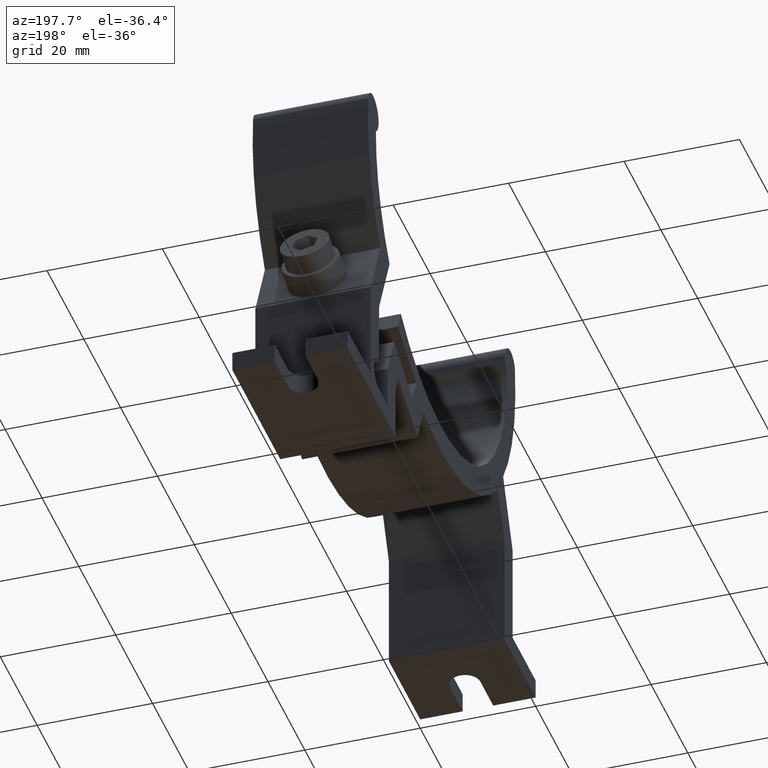
[diagram: clean part render]
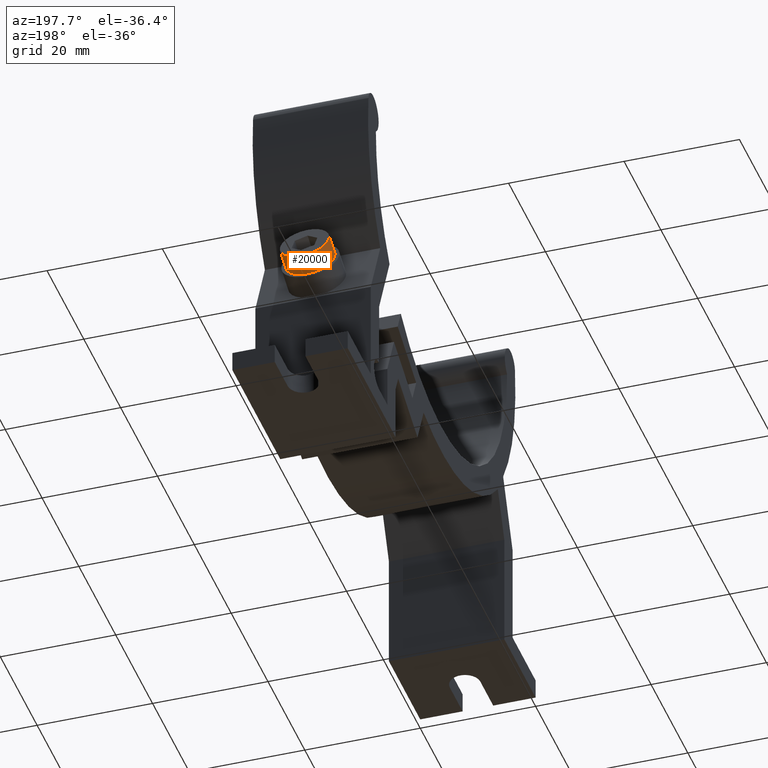
[diagram: same view with one face highlighted and labeled with its STEP entity id]
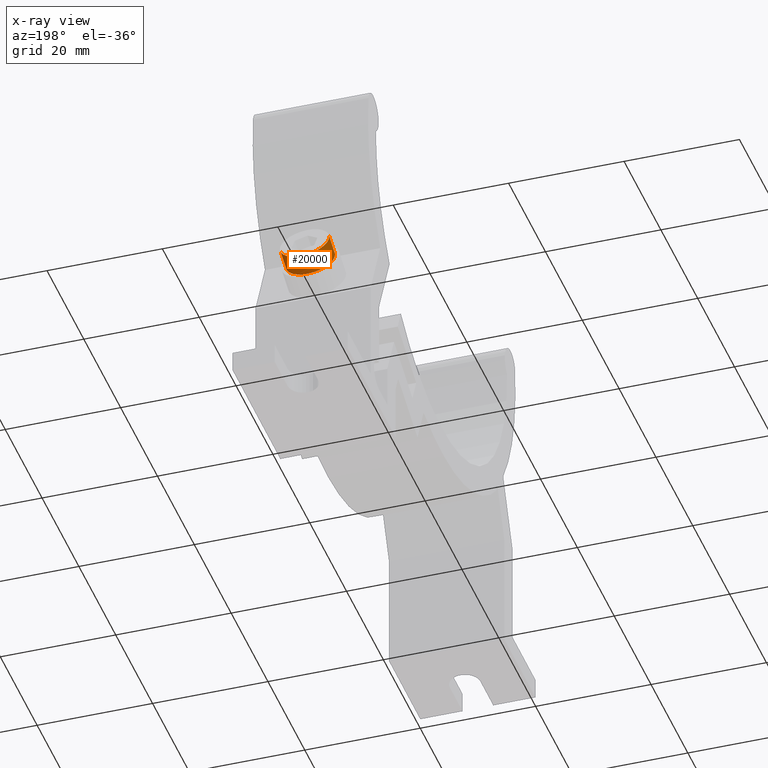
[diagram: x-ray of the same camera — body ghosted, the highlighted face saturated]
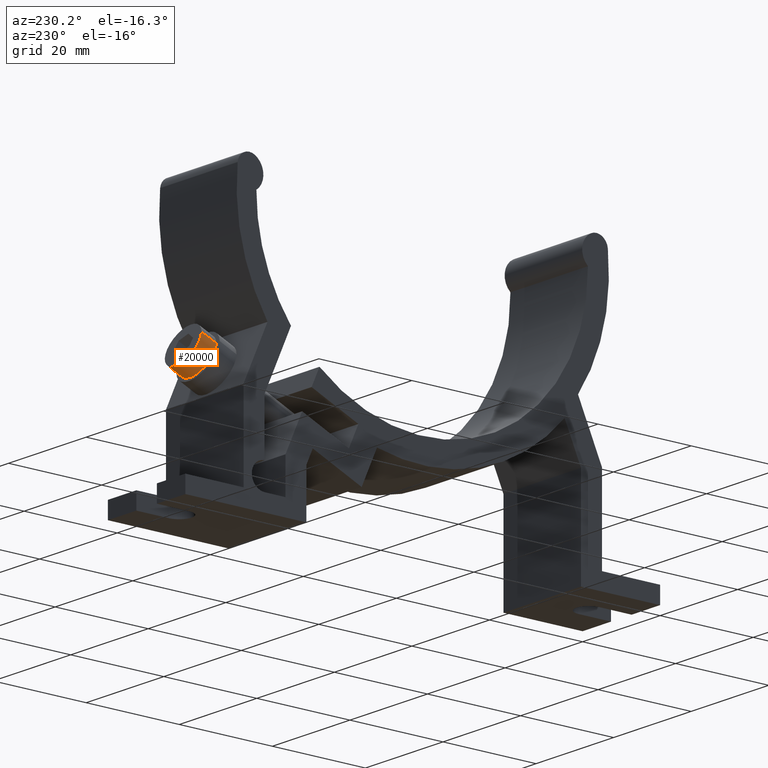
[diagram: same view with one face highlighted and labeled with its STEP entity id]
A machine part, auxiliary view. The second image highlights one B-rep face of the part: STEP entity #20000.
The next image is the same camera in x-ray: the body ghosted, the highlighted face saturated — about 0% of this face is hidden behind the body in this view.
A second angle (auxiliary view) of the same face is appended — the face is thin or edge-on in the first view.
In plain terms, the highlighted cylindrical surface (edge-blend (fillet) strip) has radius 4.25 mm, axis along (-0, -0.9135, -0.4067).
Its self-contained STEP definition (entity closure, byte-faithful):
#19410=CARTESIAN_POINT('',(39.9716115359942,-27.0835793649139,10.1));
#19420=DIRECTION('',(-0.913545457642601,-0.4067366430758,
1.94289029309402E-16));
#19430=DIRECTION('',(-0.16543469682057,0.371572412738696,
-0.913545457642602));
#19440=AXIS2_PLACEMENT_3D('',#19410,#19420,#19430);
#19450=CIRCLE('',#19440,4.25);
#19460=CARTESIAN_POINT('',(40.6747089974816,-28.6627621190534,
13.9825681949811));
#19470=VERTEX_POINT('',#19460);
#19480=CARTESIAN_POINT('',(39.2685140745068,-25.5043966107744,
6.21743180501895));
#19490=VERTEX_POINT('',#19480);
#19520=EDGE_CURVE('',#19490,#19470,#19450,.T.);
#19690=CARTESIAN_POINT('',(43.1690206377433,-25.6600011141486,10.1));
#19700=DIRECTION('',(-0.913545457642601,-0.4067366430758,
-3.33106970613062E-17));
#19710=DIRECTION('',(0.165434696820571,-0.371572412738697,
0.913545457642601));
#19720=AXIS2_PLACEMENT_3D('',#19690,#19700,#19710);
#19730=CYLINDRICAL_SURFACE('',#19720,4.25);
#19740=CARTESIAN_POINT('',(43.8721180992307,-27.2391838682881,
13.9825681949811));
#19750=DIRECTION('',(-0.913545457642601,-0.4067366430758,
-3.33106970613062E-17));
#19760=VECTOR('',#19750,1.);
#19770=LINE('',#19740,#19760);
#19780=CARTESIAN_POINT('',(43.8721180992307,-27.2391838682881,
13.9825681949811));
#19790=VERTEX_POINT('',#19780);
#19800=EDGE_CURVE('',#19790,#19470,#19770,.T.);
#19810=ORIENTED_EDGE('',*,*,#19800,.T.);
#19820=CARTESIAN_POINT('',(43.1690206377433,-25.6600011141486,10.1));
#19830=DIRECTION('',(-0.913545457642601,-0.4067366430758,
-3.33106970613062E-17));
#19840=DIRECTION('',(0.165434696820571,-0.371572412738697,
0.913545457642601));
#19850=AXIS2_PLACEMENT_3D('',#19820,#19830,#19840);
#19860=CIRCLE('',#19850,4.25);
#19870=CARTESIAN_POINT('',(42.4659231762559,-24.0808183600091,
6.21743180501895));
#19880=VERTEX_POINT('',#19870);
#19890=EDGE_CURVE('',#19880,#19790,#19860,.T.);
#19900=ORIENTED_EDGE('',*,*,#19890,.T.);
#19910=CARTESIAN_POINT('',(42.4659231762559,-24.0808183600091,
6.21743180501895));
#19920=DIRECTION('',(-0.913545457642601,-0.4067366430758,
-3.33106970613062E-17));
#19930=VECTOR('',#19920,1.);
#19940=LINE('',#19910,#19930);
#19950=EDGE_CURVE('',#19880,#19490,#19940,.T.);
#19960=ORIENTED_EDGE('',*,*,#19950,.F.);
#19970=ORIENTED_EDGE('',*,*,#19520,.F.);
#19980=EDGE_LOOP('',(#19970,#19960,#19900,#19810));
#19990=FACE_OUTER_BOUND('',#19980,.T.);
#20000=ADVANCED_FACE('',(#19990),#19730,.T.);